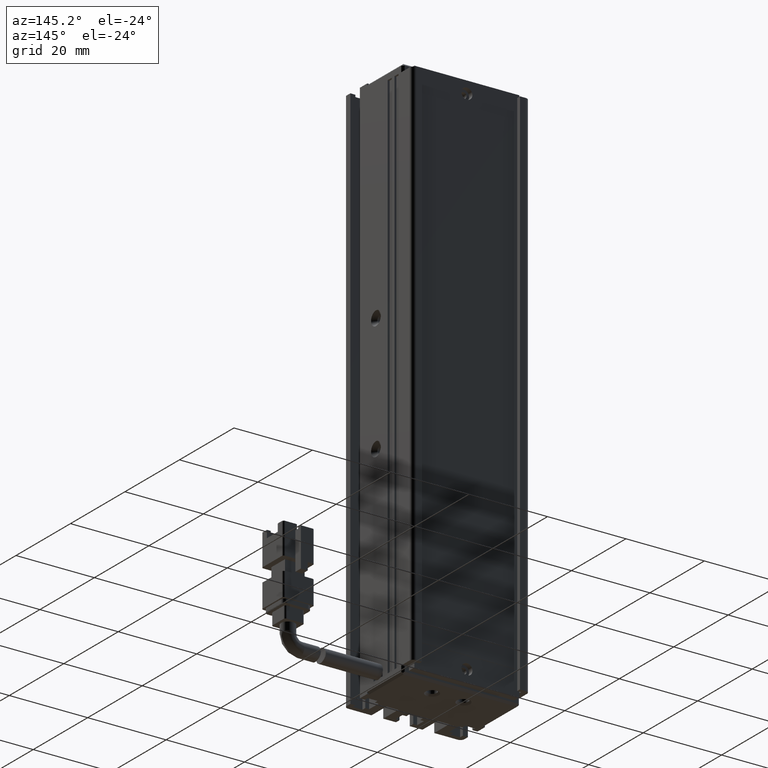
[diagram: clean part render]
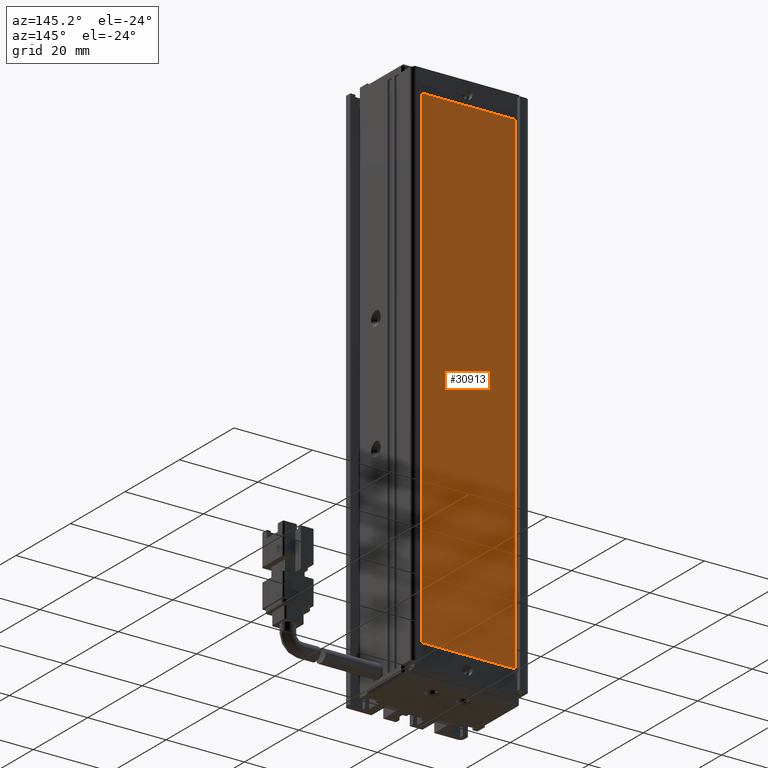
[diagram: same view with one face highlighted and labeled with its STEP entity id]
A machine part, auxiliary view. The second image highlights one B-rep face of the part: STEP entity #30913.
In plain terms, the highlighted planar face has unit normal (0, 1, 0).
Its self-contained STEP definition (entity closure, byte-faithful):
#54 = LINE ( 'NONE', #34508, #14409 ) ;
#135 = DIRECTION ( 'NONE',  ( 1.000000000000000000, 0.0000000000000000000, 0.0000000000000000000 ) ) ;
#176 = LINE ( 'NONE', #8307, #29791 ) ;
#771 = ORIENTED_EDGE ( 'NONE', *, *, #9815, .T. ) ;
#1585 = CARTESIAN_POINT ( 'NONE',  ( 28.52537974683541600, 34.29594479660387000, -177.8499999999999700 ) ) ;
#1693 = EDGE_CURVE ( 'NONE', #4552, #12297, #176, .T. ) ;
#2498 = LINE ( 'NONE', #11498, #16839 ) ;
#2920 = DIRECTION ( 'NONE',  ( 0.0000000000000000000, 0.0000000000000000000, 1.000000000000000000 ) ) ;
#3792 = DIRECTION ( 'NONE',  ( 0.0000000000000000000, 0.0000000000000000000, -1.000000000000000000 ) ) ;
#4042 = DIRECTION ( 'NONE',  ( 0.0000000000000000000, 1.000000000000000000, 0.0000000000000000000 ) ) ;
#4552 = VERTEX_POINT ( 'NONE', #29236 ) ;
#6581 = VECTOR ( 'NONE', #3792, 1000.000000000000000 ) ;
#6635 = AXIS2_PLACEMENT_3D ( 'NONE', #18333, #4042, #24073 ) ;
#8307 = CARTESIAN_POINT ( 'NONE',  ( 53.32537974683541600, 34.29594479660387000, -177.8499999999999700 ) ) ;
#8957 = EDGE_LOOP ( 'NONE', ( #771, #30250, #10276, #30953 ) ) ;
#9815 = EDGE_CURVE ( 'NONE', #12297, #27496, #2498, .T. ) ;
#10276 = ORIENTED_EDGE ( 'NONE', *, *, #27859, .T. ) ;
#11498 = CARTESIAN_POINT ( 'NONE',  ( 28.52537974683541600, 34.29594479660387000, -177.8499999999999700 ) ) ;
#12297 = VERTEX_POINT ( 'NONE', #1585 ) ;
#14409 = VECTOR ( 'NONE', #135, 1000.000000000000000 ) ;
#15754 = FACE_OUTER_BOUND ( 'NONE', #8957, .T. ) ;
#16839 = VECTOR ( 'NONE', #2920, 1000.000000000000000 ) ;
#17039 = DIRECTION ( 'NONE',  ( -1.000000000000000000, 0.0000000000000000000, 0.0000000000000000000 ) ) ;
#18333 = CARTESIAN_POINT ( 'NONE',  ( 0.0000000000000000000, 34.29594479660387000, 0.0000000000000000000 ) ) ;
#21189 = PLANE ( 'NONE',  #6635 ) ;
#24073 = DIRECTION ( 'NONE',  ( 0.0000000000000000000, -0.0000000000000000000, 1.000000000000000000 ) ) ;
#24987 = CARTESIAN_POINT ( 'NONE',  ( 28.52537974683541600, 34.29594479660387000, -51.84999999999996600 ) ) ;
#25081 = EDGE_CURVE ( 'NONE', #27496, #33012, #54, .T. ) ;
#27496 = VERTEX_POINT ( 'NONE', #24987 ) ;
#27859 = EDGE_CURVE ( 'NONE', #33012, #4552, #28527, .T. ) ;
#28527 = LINE ( 'NONE', #32228, #6581 ) ;
#29236 = CARTESIAN_POINT ( 'NONE',  ( 53.32537974683541600, 34.29594479660387000, -177.8499999999999700 ) ) ;
#29791 = VECTOR ( 'NONE', #17039, 1000.000000000000000 ) ;
#30250 = ORIENTED_EDGE ( 'NONE', *, *, #25081, .T. ) ;
#30913 = ADVANCED_FACE ( 'NONE', ( #15754 ), #21189, .T. ) ;
#30953 = ORIENTED_EDGE ( 'NONE', *, *, #1693, .T. ) ;
#32228 = CARTESIAN_POINT ( 'NONE',  ( 53.32537974683541600, 34.29594479660387000, -51.84999999999996600 ) ) ;
#33012 = VERTEX_POINT ( 'NONE', #33550 ) ;
#33550 = CARTESIAN_POINT ( 'NONE',  ( 53.32537974683541600, 34.29594479660387000, -51.84999999999996600 ) ) ;
#34508 = CARTESIAN_POINT ( 'NONE',  ( 28.52537974683541600, 34.29594479660387000, -51.84999999999996600 ) ) ;